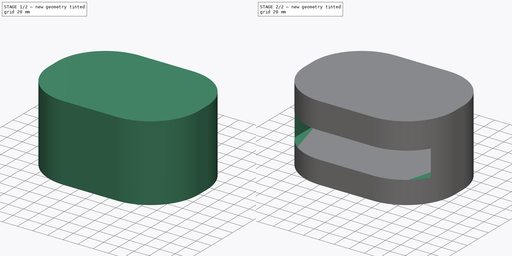
[diagram: build sequence overview — one tinted view per stage of 2, left to right]
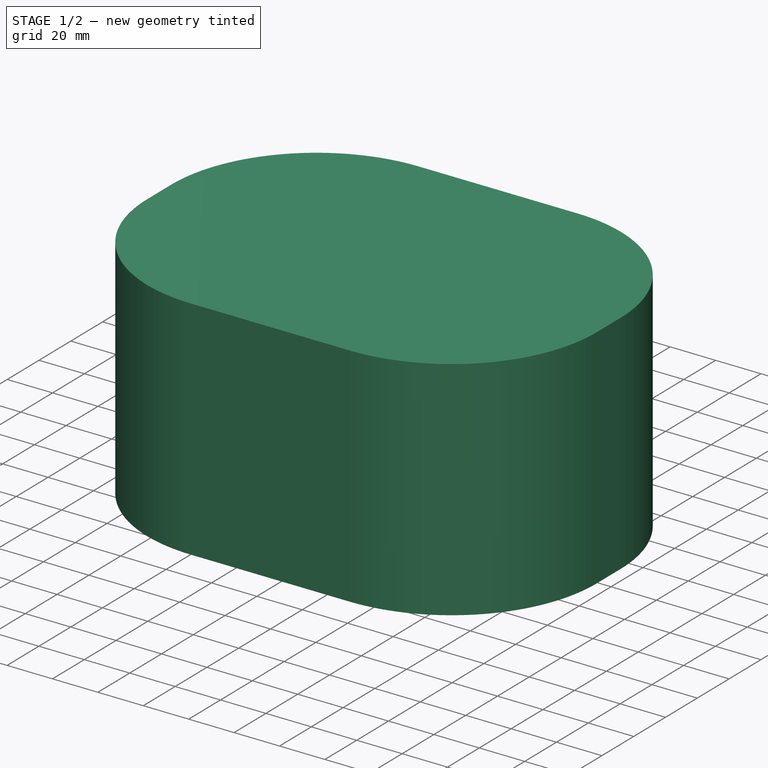
[diagram: stage 1 of 2 — iso view after this stage's code; geometry added in this stage tinted green]
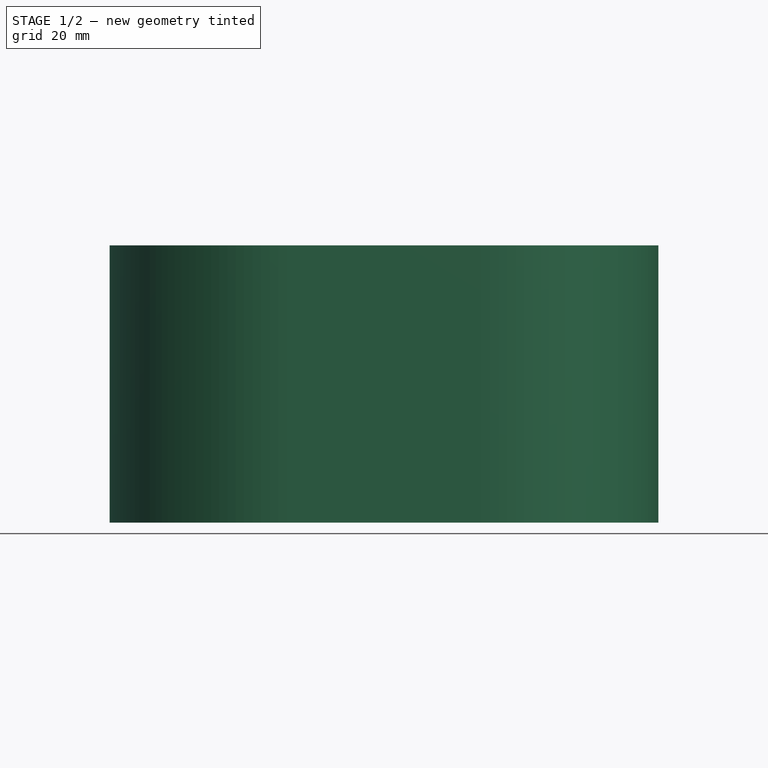
[diagram: stage 1 of 2 — front view after this stage's code; geometry added in this stage tinted green]
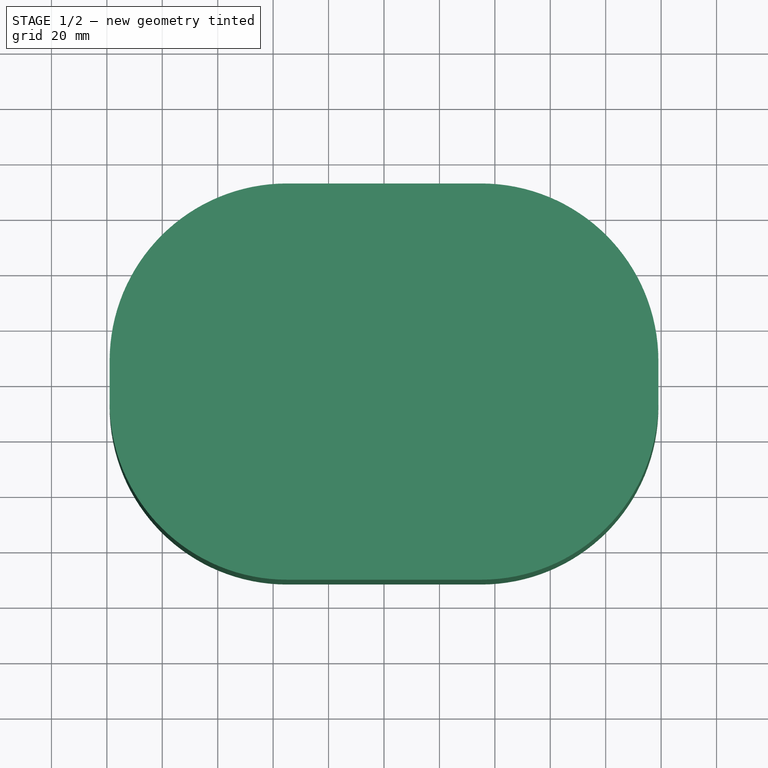
[diagram: stage 1 of 2 — top view after this stage's code; geometry added in this stage tinted green]
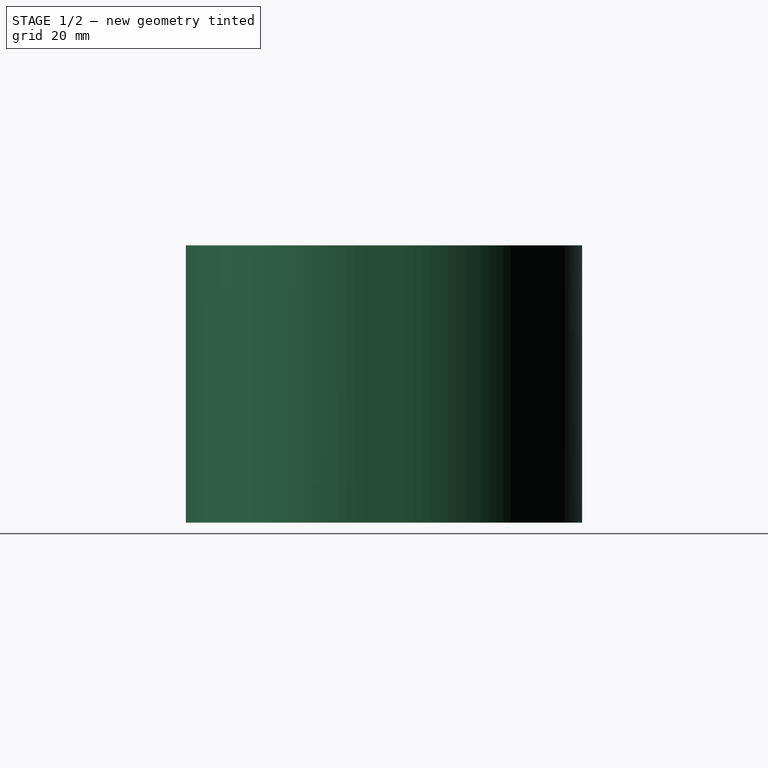
[diagram: stage 1 of 2 — right view after this stage's code; geometry added in this stage tinted green]
FCSTD DOCUMENT  (FreeCAD 0.19R24291 (Git))
Label: tms_v2
License: All rights reserved
LicenseURL: http://en.wikipedia.org/wiki/All_rights_reserved
objects: Sketcher::SketchObject×4, PartDesign::Pocket×3, PartDesign::Pad×1, PartDesign::Body×1
note: 13 computed .brp shape members not serialized (recipe doc carries the construction recipe); baked Part::Feature solids carry a one-line shape summary decoded from their .brp

FEATURE [Sketcher::SketchObject] Sketch
  AttachmentOffset = pos=(0,0,30) rot=(0,0,1;0rad)
  FullyConstrained = true
  MapMode = 5
  Placement = pos=(0,0,30) rot=(0,0,1;0rad)
  Support = -> [XY_Plane]
  sketch-geometry (8):
    g0: ArcOfCircle CenterX=35 CenterY=7.5 CenterZ=0 NormalX=0 NormalY=0 NormalZ=1 AngleXU=0 Radius=54 StartAngle=0 EndAngle=1.5708
    g1: ArcOfCircle CenterX=35 CenterY=-7.5 CenterZ=0 NormalX=0 NormalY=0 NormalZ=1 AngleXU=0 Radius=54 StartAngle=4.71239 EndAngle=6.28319
    g2: LineSegment StartX=89 StartY=7.5 StartZ=0 EndX=89 EndY=-7.5 EndZ=0
    g3: ArcOfCircle CenterX=-35 CenterY=7.5 CenterZ=0 NormalX=0 NormalY=0 NormalZ=1 AngleXU=0 Radius=54 StartAngle=1.5708 EndAngle=3.14159
    g4: ArcOfCircle CenterX=-35 CenterY=-7.5 CenterZ=0 NormalX=0 NormalY=0 NormalZ=1 AngleXU=0 Radius=54 StartAngle=3.14159 EndAngle=4.71239
    g5: LineSegment StartX=-89 StartY=7.5 StartZ=0 EndX=-89 EndY=-7.5 EndZ=0
    g6: LineSegment StartX=35 StartY=61.5 StartZ=0 EndX=-35 EndY=61.5 EndZ=0
    g7: LineSegment StartX=-35 StartY=-61.5 StartZ=0 EndX=35 EndY=-61.5 EndZ=0
  constraints (19):
    c: Radius(g0) = 54
    c: Radius(g1) = 54
    c: Symmetric(g0,g1,g-1)
    c: DistanceY(g1,g0) = 15
    c: Tangent(g2,g1) = 1.5708
    c: Tangent(g2,g0) = 1.5708
    c: Radius(g3) = 54
    c: Radius(g4) = 54
    c: Tangent(g5,g3) = -1.5708
    c: Tangent(g5,g4) = -1.5708
    c: Symmetric(g4,g3,g-1)
    c: Symmetric(g4,g1,g-2)
    c: DistanceX(g4,g1) = 70
    c: Coincident(g6,g0)
    c: Coincident(g7,g1)
    c: Horizontal(g7)
    c: Tangent(g7,g4) = -1.5708
    c: Tangent(g6,g3) = -1.5708
    c: Horizontal(g6)
FEATURE [Sketcher::SketchObject] Sketch001
  FullyConstrained = true
  MapMode = 5
  Support = -> [XY_Plane]
  sketch-geometry (8):
    g0: ArcOfCircle CenterX=35 CenterY=7.5 CenterZ=0 NormalX=0 NormalY=0 NormalZ=1 AngleXU=0 Radius=64 StartAngle=0 EndAngle=1.5708
    g1: ArcOfCircle CenterX=35 CenterY=-7.5 CenterZ=0 NormalX=0 NormalY=0 NormalZ=1 AngleXU=0 Radius=64 StartAngle=4.71239 EndAngle=6.28319
    g2: LineSegment StartX=99 StartY=7.5 StartZ=0 EndX=99 EndY=-7.5 EndZ=0
    g3: ArcOfCircle CenterX=-35 CenterY=7.5 CenterZ=0 NormalX=0 NormalY=0 NormalZ=1 AngleXU=0 Radius=64 StartAngle=1.5708 EndAngle=3.14159
    g4: ArcOfCircle CenterX=-35 CenterY=-7.5 CenterZ=0 NormalX=0 NormalY=0 NormalZ=1 AngleXU=0 Radius=64 StartAngle=3.14159 EndAngle=4.71239
    g5: LineSegment StartX=-99 StartY=7.5 StartZ=0 EndX=-99 EndY=-7.5 EndZ=0
    g6: LineSegment StartX=35.0001 StartY=71.5 StartZ=0 EndX=-35 EndY=71.5 EndZ=0
    g7: LineSegment StartX=-35 StartY=-71.5 StartZ=0 EndX=35 EndY=-71.5 EndZ=0
  constraints (19):
    c: Radius(g0) = 64
    c: Radius(g1) = 64
    c: Symmetric(g0,g1,g-1)
    c: DistanceY(g1,g0) = 15
    c: Tangent(g2,g1) = 1.5708
    c: Tangent(g2,g0) = 1.5708
    c: Radius(g3) = 64
    c: Radius(g4) = 64
    c: Tangent(g5,g3) = -1.5708
    c: Tangent(g5,g4) = -1.5708
    c: Symmetric(g4,g3,g-1)
    c: Symmetric(g4,g1,g-2)
    c: DistanceX(g4,g1) = 70
    c: Coincident(g6,g0)
    c: Coincident(g7,g1)
    c: Horizontal(g7)
    c: Tangent(g7,g4) = -1.5708
    c: Tangent(g6,g3) = -1.5708
    c: Horizontal(g6)
FEATURE [PartDesign::Pad] Pad
  Direction = (1,1,1)
  Length = 100
  Length2 = 100
  Profile = -> Sketch001
  Refine = true
  Type = 0
FEATURE [PartDesign::Pocket] Pocket
  BaseFeature = -> Pad
  Length = 35
  Length2 = 100
  Profile = -> Sketch
  Refine = true
  Reversed = true
  Type = 0
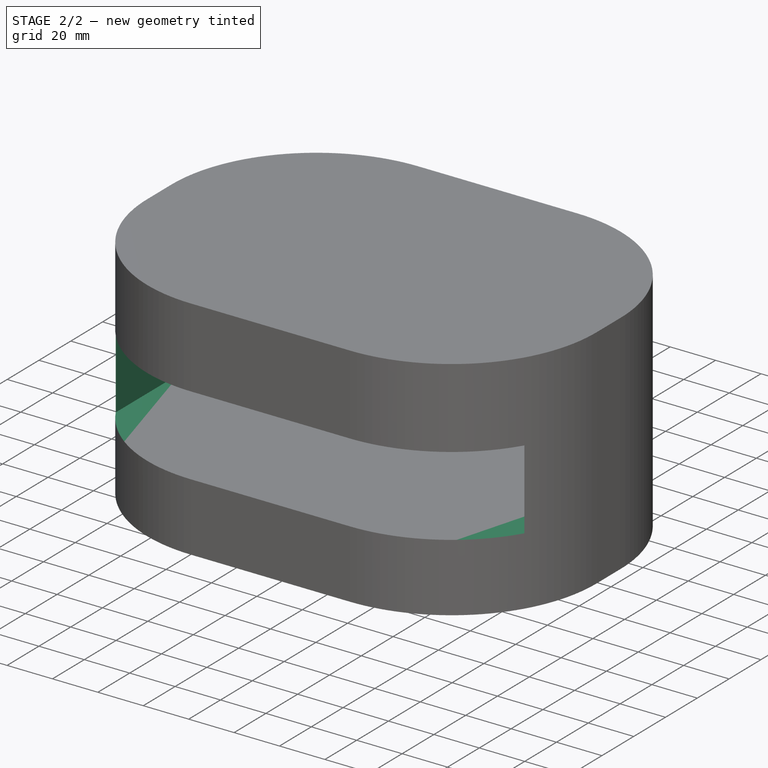
[diagram: stage 2 of 2 — iso view after this stage's code; geometry added in this stage tinted green]
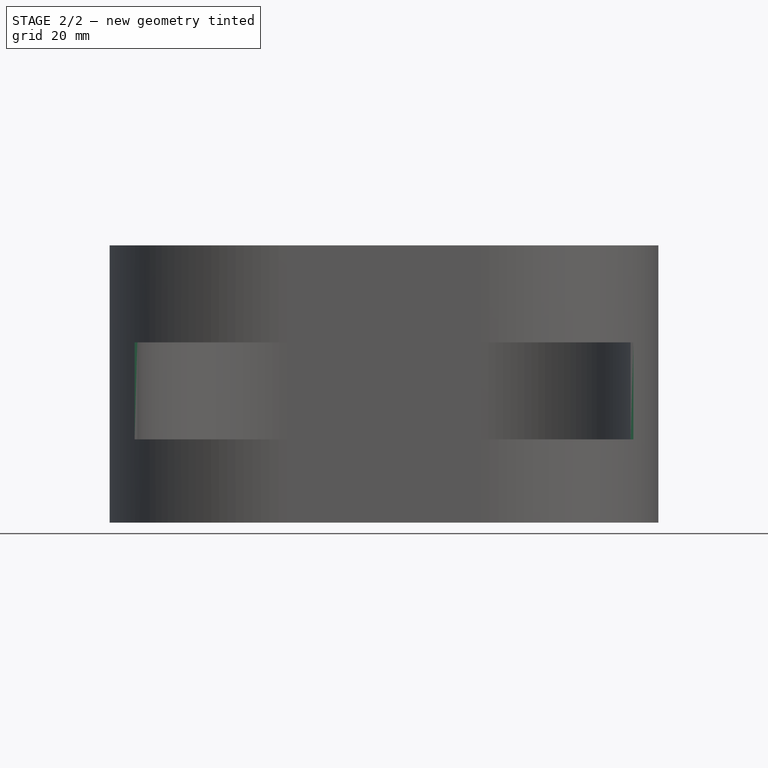
[diagram: stage 2 of 2 — front view after this stage's code; geometry added in this stage tinted green]
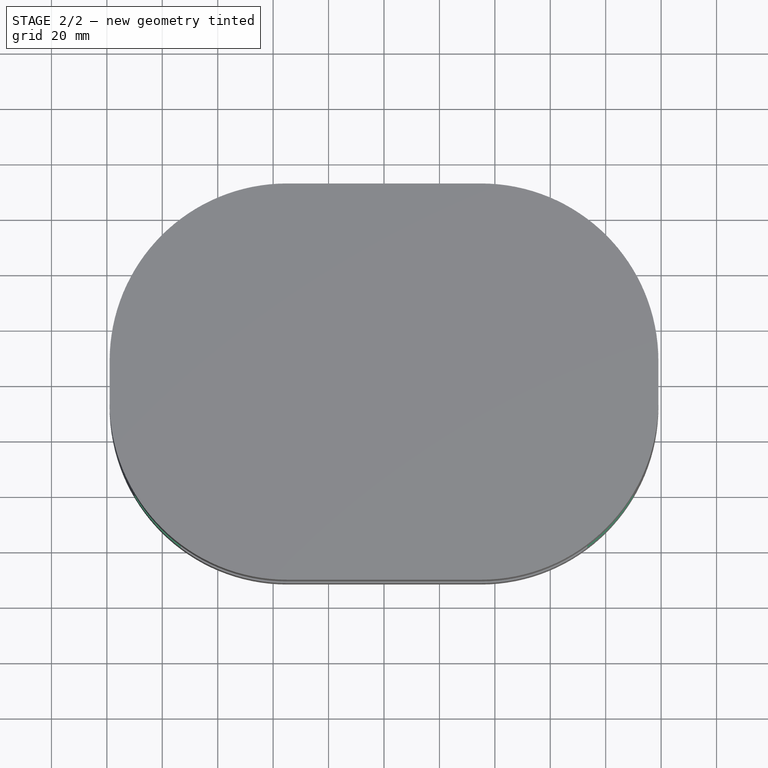
[diagram: stage 2 of 2 — top view after this stage's code; geometry added in this stage tinted green]
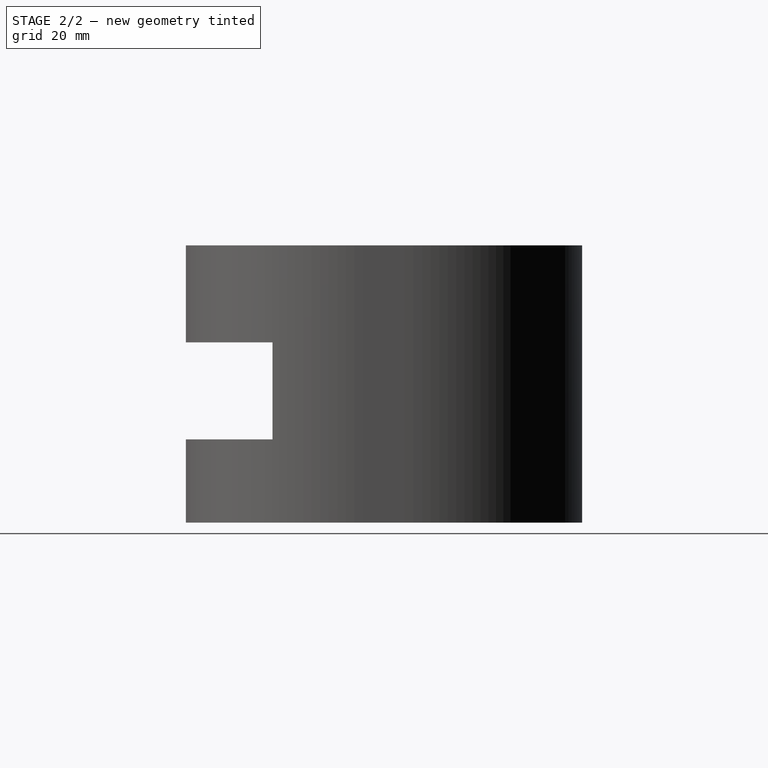
[diagram: stage 2 of 2 — right view after this stage's code; geometry added in this stage tinted green]
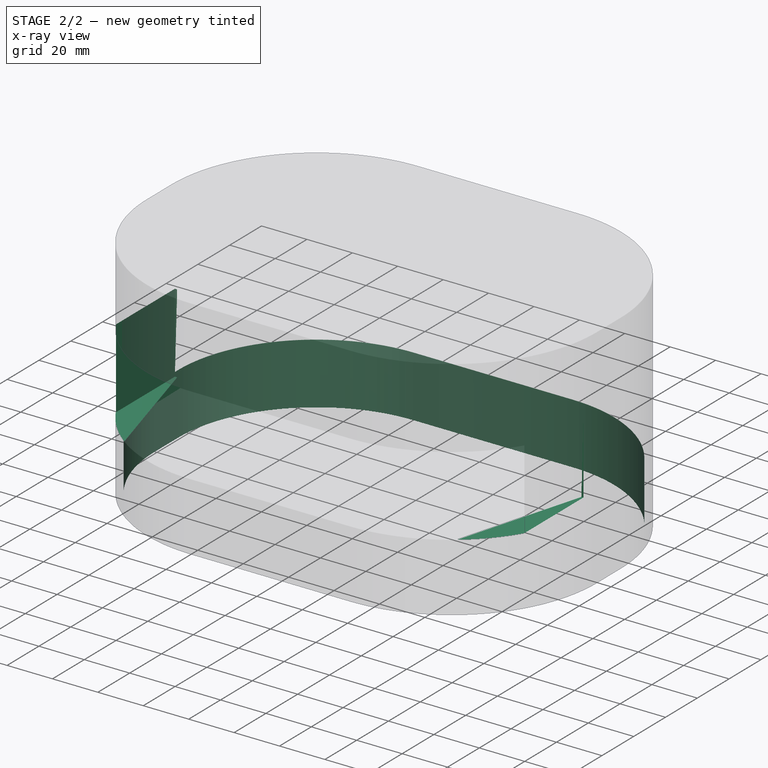
[diagram: stage 2 of 2 — x-ray composite at the iso view; earlier geometry ghosted, this stage's added geometry solid]
FEATURE [Sketcher::SketchObject] Sketch002
  AttachmentOffset = pos=(0,0,80) rot=(0,0,1;0rad)
  FullyConstrained = true
  MapMode = 5
  Placement = pos=(0,-80,1.78e-14) rot=(1,0,0;1.5708rad)
  Support = -> [XZ_Plane]
  sketch-geometry (4):
    g0: LineSegment StartX=-90 StartY=65 StartZ=0 EndX=90 EndY=65 EndZ=0
    g1: LineSegment StartX=90 StartY=65 StartZ=0 EndX=90 EndY=30 EndZ=0
    g2: LineSegment StartX=90 StartY=30 StartZ=0 EndX=-90 EndY=30 EndZ=0
    g3: LineSegment StartX=-90 StartY=30 StartZ=0 EndX=-90 EndY=65 EndZ=0
  constraints (11):
    c: Coincident(g0,g1)
    c: Coincident(g1,g2)
    c: Coincident(g2,g3)
    c: Coincident(g3,g0)
    c: Horizontal(g2)
    c: Vertical(g1)
    c: Vertical(g3)
    c: Symmetric(g0,g0,g-2)
    c: DistanceY(g1,g1) = 35
    c: DistanceX(g0,g0) = 180
    c: DistanceY(g-1,g1) = 30
FEATURE [PartDesign::Pocket] Pocket001
  BaseFeature = -> Pocket
  Length = 77
  Length2 = 100
  Profile = -> Sketch002
  Refine = true
  Type = 0
FEATURE [Sketcher::SketchObject] Sketch003
  FullyConstrained = true
  MapMode = 5
  Support = -> [XY_Plane]
  sketch-geometry (8):
    g0: ArcOfCircle CenterX=35 CenterY=7.5 CenterZ=0 NormalX=0 NormalY=0 NormalZ=1 AngleXU=0 Radius=61 StartAngle=0 EndAngle=1.5708
    g1: ArcOfCircle CenterX=35 CenterY=-7.5 CenterZ=0 NormalX=0 NormalY=0 NormalZ=1 AngleXU=0 Radius=61 StartAngle=4.71239 EndAngle=6.28319
    g2: LineSegment StartX=96 StartY=7.5 StartZ=0 EndX=96 EndY=-7.5 EndZ=0
    g3: ArcOfCircle CenterX=-35 CenterY=7.5 CenterZ=0 NormalX=0 NormalY=0 NormalZ=1 AngleXU=0 Radius=61 StartAngle=1.5708 EndAngle=3.14159
    g4: ArcOfCircle CenterX=-35 CenterY=-7.5 CenterZ=0 NormalX=0 NormalY=0 NormalZ=1 AngleXU=0 Radius=61 StartAngle=3.14159 EndAngle=4.71239
    g5: LineSegment StartX=-96 StartY=7.5 StartZ=0 EndX=-96 EndY=-7.5 EndZ=0
    g6: LineSegment StartX=35 StartY=68.5 StartZ=0 EndX=-35 EndY=68.5 EndZ=0
    g7: LineSegment StartX=-35 StartY=-68.5 StartZ=0 EndX=34.9999 EndY=-68.5 EndZ=0
  constraints (19):
    c: Radius(g0) = 61
    c: Radius(g1) = 61
    c: Symmetric(g0,g1,g-1)
    c: DistanceY(g1,g0) = 15
    c: Tangent(g2,g1) = 1.5708
    c: Tangent(g2,g0) = 1.5708
    c: Radius(g3) = 61
    c: Radius(g4) = 61
    c: Tangent(g5,g3) = -1.5708
    c: Tangent(g5,g4) = -1.5708
    c: Symmetric(g4,g3,g-1)
    c: Symmetric(g4,g1,g-2)
    c: DistanceX(g4,g1) = 70
    c: Coincident(g6,g0)
    c: Coincident(g7,g1)
    c: Horizontal(g7)
    c: Tangent(g7,g4) = -1.5708
    c: Tangent(g6,g3) = -1.5708
    c: Horizontal(g6)
FEATURE [PartDesign::Pocket] Pocket002
  BaseFeature = -> Pocket001
  Length = 27
  Length2 = 100
  Profile = -> Sketch003
  Refine = true
  Reversed = true
  Type = 0
FEATURE [PartDesign::Body] Body
  Group = -> [Sketch001,Sketch,Pad,Pocket,Sketch002,Pocket001,Sketch003,Pocket002]
  Origin = -> Origin
  Tip = -> Pocket002
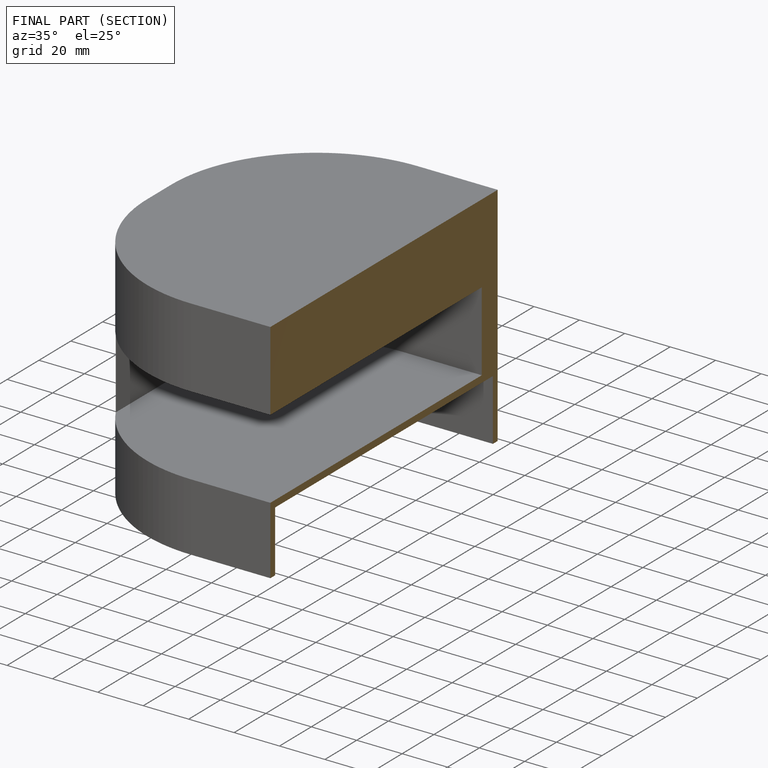
[diagram: finished part — half-section view (interior)]
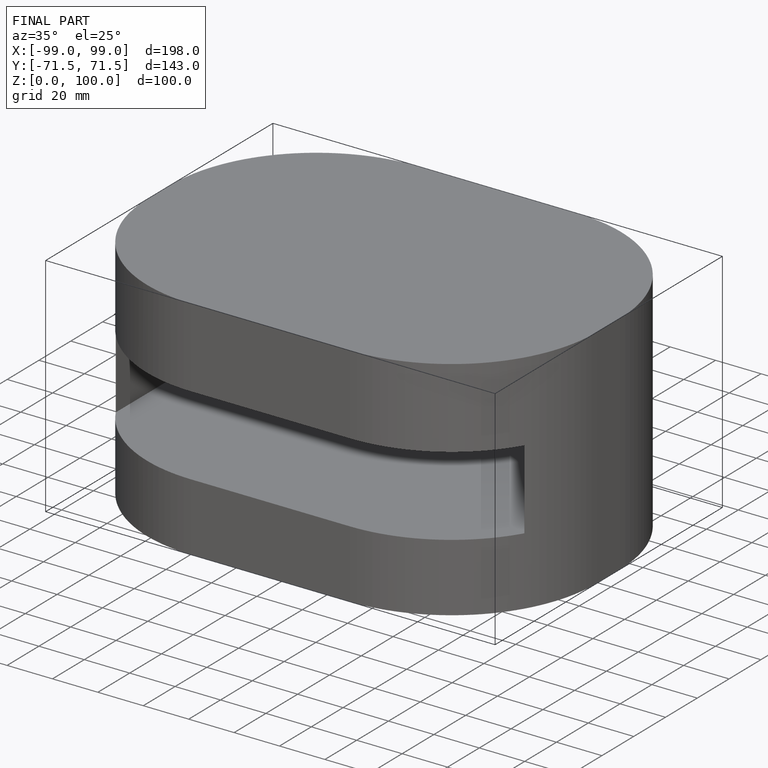
[diagram: finished part — iso view with bounding-box wireframe]
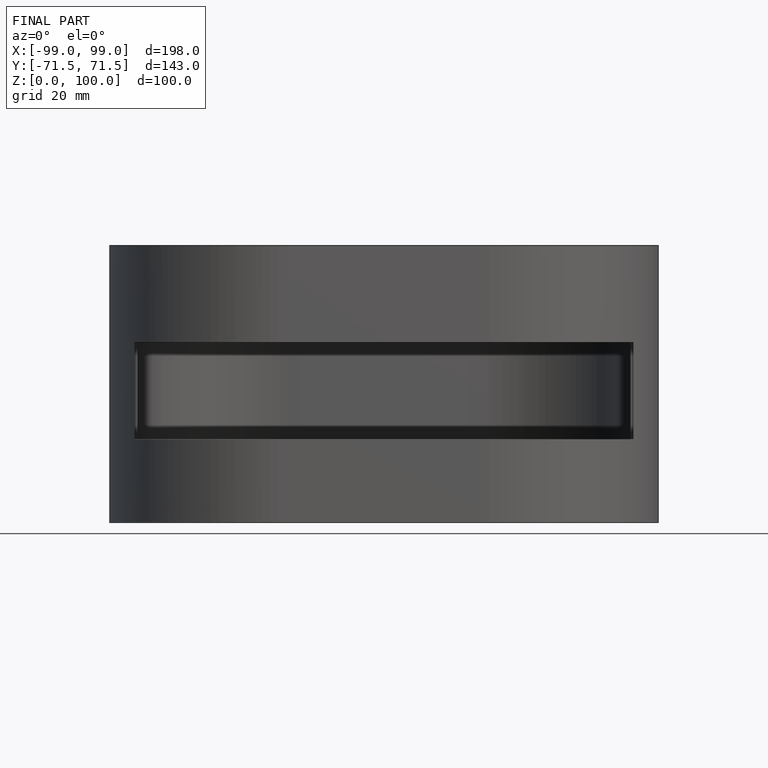
[diagram: finished part — front view with bounding-box wireframe]
